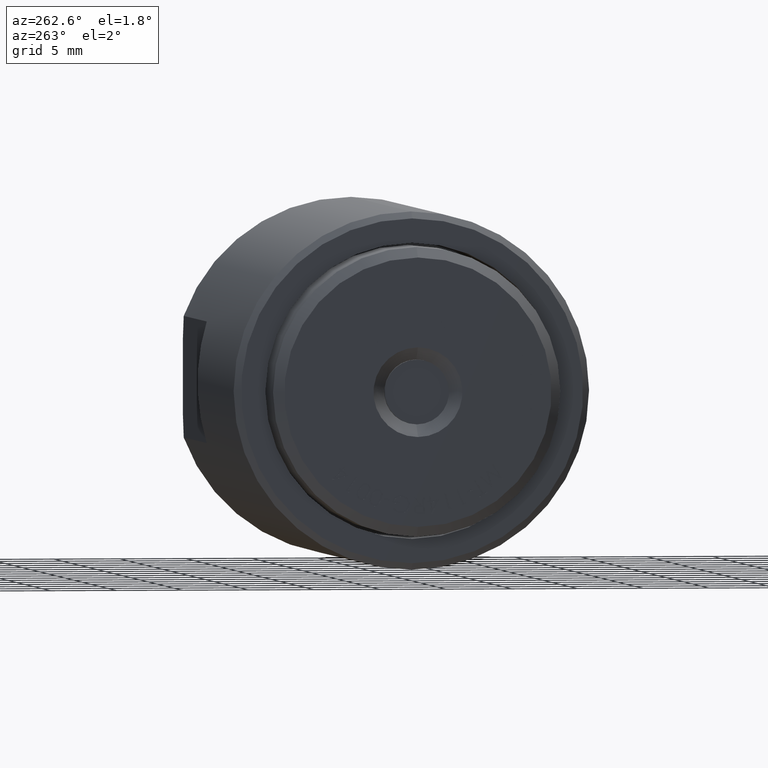
[diagram: clean part render]
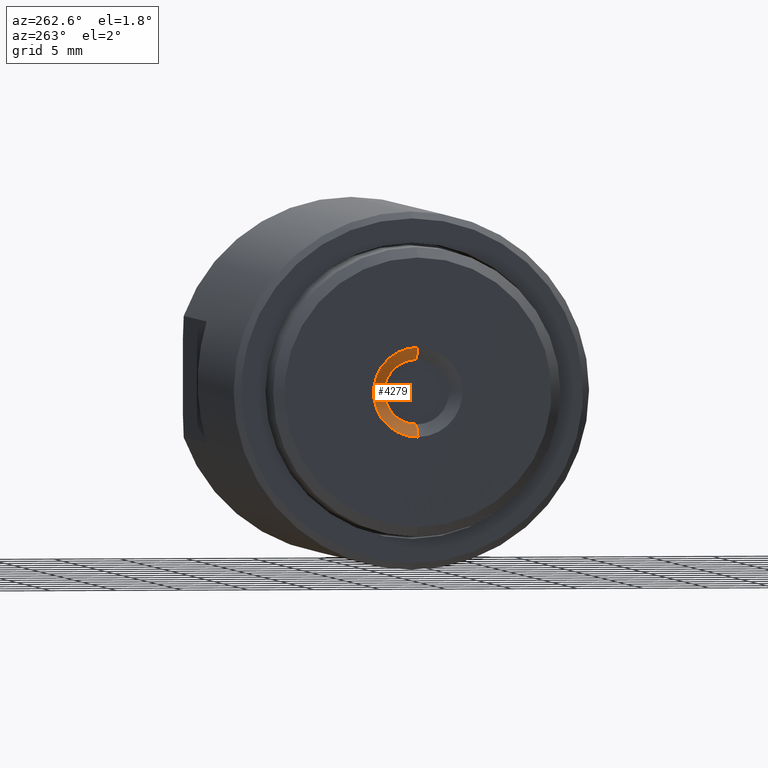
[diagram: same view with one face highlighted and labeled with its STEP entity id]
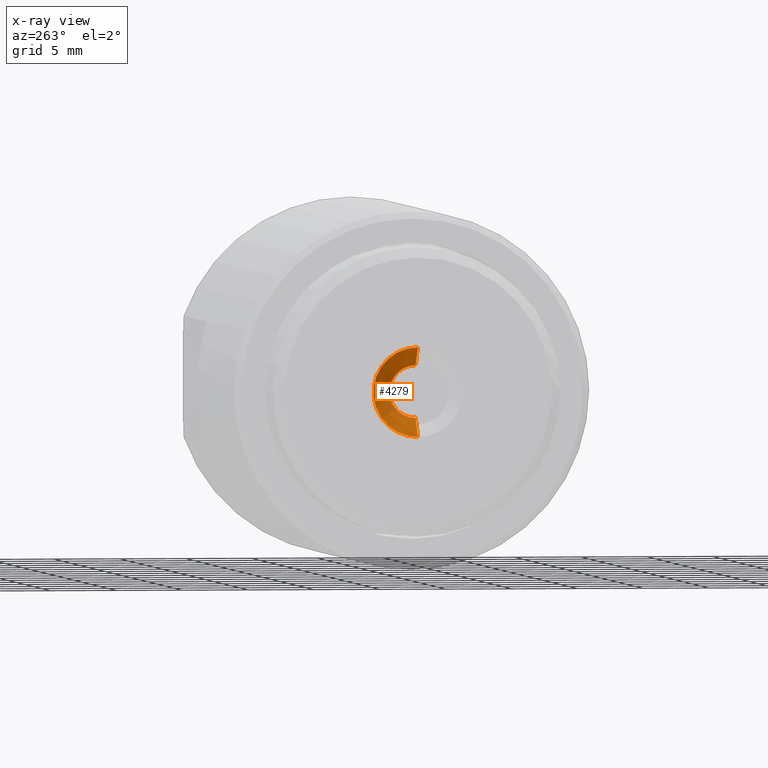
[diagram: x-ray of the same camera — body ghosted, the highlighted face saturated]
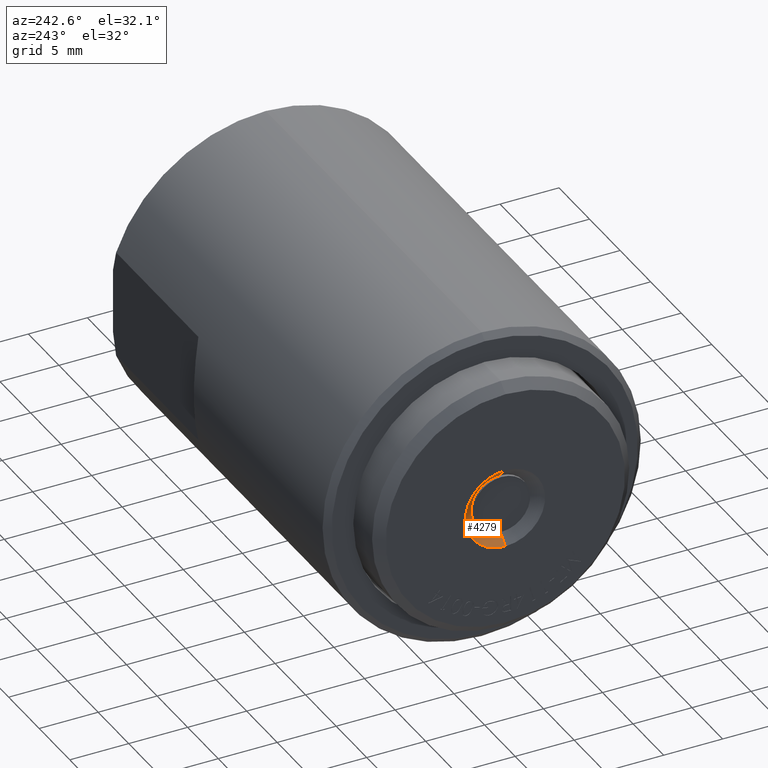
[diagram: same view with one face highlighted and labeled with its STEP entity id]
A machine part, auxiliary view. The second image highlights one B-rep face of the part: STEP entity #4279.
The next image is the same camera in x-ray: the body ghosted, the highlighted face saturated — about 0% of this face is hidden behind the body in this view.
A second angle (auxiliary view) of the same face is appended — the face is thin or edge-on in the first view.
In plain terms, the highlighted conical surface has half-angle 45 deg.
Its self-contained STEP definition (entity closure, byte-faithful):
#22 = CARTESIAN_POINT ( 'NONE',  ( -0.3440000000000000280, 0.0000000000000000000, 0.1330000000000000626 ) ) ;
#213 = VECTOR ( 'NONE', #4369, 39.37007874015748854 ) ;
#440 = FACE_OUTER_BOUND ( 'NONE', #9526, .T. ) ;
#766 = CIRCLE ( 'NONE', #5576, 0.07799999999999999989 ) ;
#968 = VERTEX_POINT ( 'NONE', #2118 ) ;
#1008 = ORIENTED_EDGE ( 'NONE', *, *, #6764, .F. ) ;
#1067 = CARTESIAN_POINT ( 'NONE',  ( -0.3440000000000000280, 1.628780242865980473E-17, -0.1330000000000000626 ) ) ;
#1316 = CARTESIAN_POINT ( 'NONE',  ( -0.3440000000000000280, 0.0000000000000000000, 0.1330000000000000626 ) ) ;
#1321 = CIRCLE ( 'NONE', #9461, 0.1330000000000000626 ) ;
#1344 = DIRECTION ( 'NONE',  ( -1.000000000000000000, -0.0000000000000000000, -0.0000000000000000000 ) ) ;
#2118 = CARTESIAN_POINT ( 'NONE',  ( -0.2890000000000002012, 0.0000000000000000000, 0.07799999999999999989 ) ) ;
#3000 = CARTESIAN_POINT ( 'NONE',  ( -0.3440000000000000280, 1.628780242865980473E-17, -0.1330000000000000626 ) ) ;
#3974 = CARTESIAN_POINT ( 'NONE',  ( -0.3440000000000000280, 0.0000000000000000000, 0.0000000000000000000 ) ) ;
#4165 = VERTEX_POINT ( 'NONE', #3000 ) ;
#4236 = CARTESIAN_POINT ( 'NONE',  ( -0.2890000000000002012, 0.0000000000000000000, 0.0000000000000000000 ) ) ;
#4279 = ADVANCED_FACE ( 'NONE', ( #440 ), #10979, .F. ) ;
#4369 = DIRECTION ( 'NONE',  ( -0.7071067811865459074, 0.0000000000000000000, 0.7071067811865490160 ) ) ;
#4796 = VECTOR ( 'NONE', #6233, 39.37007874015748854 ) ;
#4847 = DIRECTION ( 'NONE',  ( 0.0000000000000000000, 0.0000000000000000000, 1.000000000000000000 ) ) ;
#4909 = ORIENTED_EDGE ( 'NONE', *, *, #5505, .T. ) ;
#5474 = ORIENTED_EDGE ( 'NONE', *, *, #5631, .F. ) ;
#5505 = EDGE_CURVE ( 'NONE', #6427, #4165, #1321, .T. ) ;
#5576 = AXIS2_PLACEMENT_3D ( 'NONE', #4236, #5984, #10375 ) ;
#5631 = EDGE_CURVE ( 'NONE', #968, #10569, #766, .T. ) ;
#5811 = DIRECTION ( 'NONE',  ( 0.0000000000000000000, 0.0000000000000000000, 1.000000000000000000 ) ) ;
#5984 = DIRECTION ( 'NONE',  ( -1.000000000000000000, -0.0000000000000000000, -0.0000000000000000000 ) ) ;
#6003 = AXIS2_PLACEMENT_3D ( 'NONE', #3974, #8566, #4847 ) ;
#6233 = DIRECTION ( 'NONE',  ( -0.7071067811865459074, 8.659560562354951347E-17, -0.7071067811865490160 ) ) ;
#6427 = VERTEX_POINT ( 'NONE', #1316 ) ;
#6764 = EDGE_CURVE ( 'NONE', #10569, #4165, #7272, .T. ) ;
#7272 = LINE ( 'NONE', #1067, #4796 ) ;
#8566 = DIRECTION ( 'NONE',  ( -1.000000000000000000, -0.0000000000000000000, -0.0000000000000000000 ) ) ;
#9461 = AXIS2_PLACEMENT_3D ( 'NONE', #9802, #1344, #5811 ) ;
#9526 = EDGE_LOOP ( 'NONE', ( #1008, #5474, #9777, #4909 ) ) ;
#9777 = ORIENTED_EDGE ( 'NONE', *, *, #10911, .T. ) ;
#9802 = CARTESIAN_POINT ( 'NONE',  ( -0.3440000000000000280, 0.0000000000000000000, 0.0000000000000000000 ) ) ;
#10375 = DIRECTION ( 'NONE',  ( 0.0000000000000000000, 0.0000000000000000000, 1.000000000000000000 ) ) ;
#10505 = LINE ( 'NONE', #22, #213 ) ;
#10569 = VERTEX_POINT ( 'NONE', #10688 ) ;
#10688 = CARTESIAN_POINT ( 'NONE',  ( -0.2890000000000002012, 1.292002373100458008E-17, -0.07799999999999999989 ) ) ;
#10911 = EDGE_CURVE ( 'NONE', #968, #6427, #10505, .T. ) ;
#10979 = CONICAL_SURFACE ( 'NONE', #6003, 0.1330000000000000626, 0.7853981633974504994 ) ;